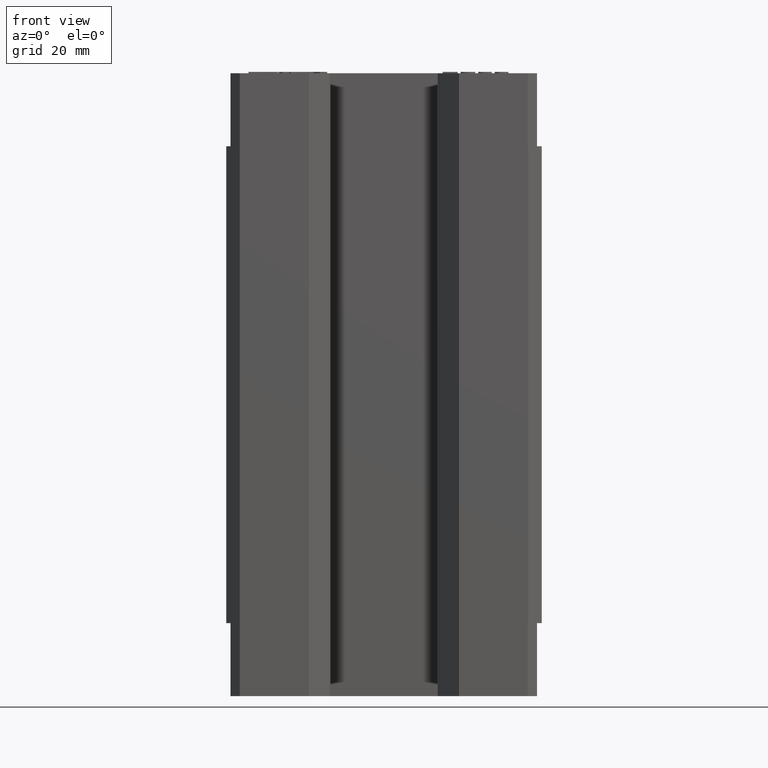
[diagram: clean part render]
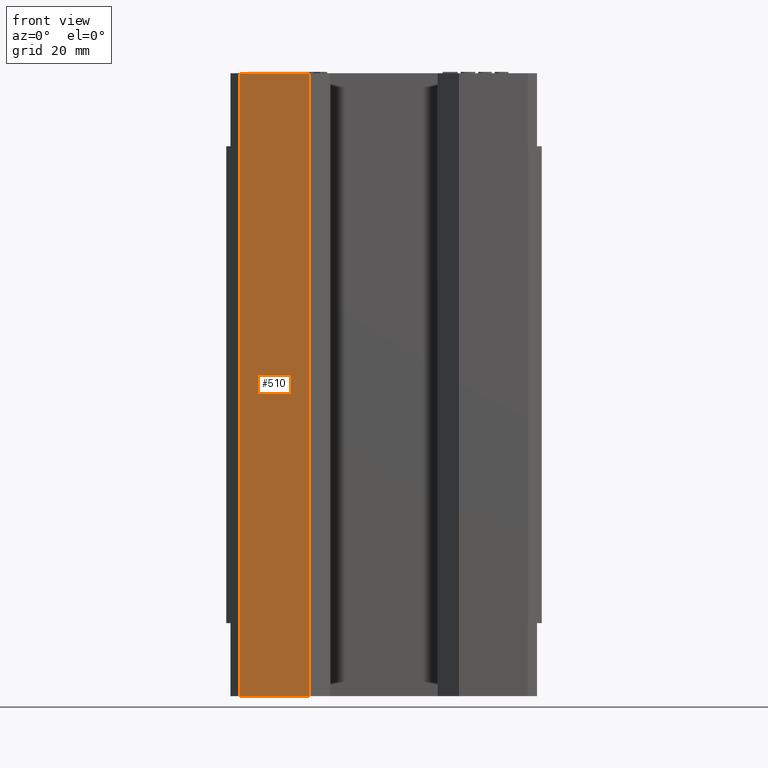
[diagram: same view with one face highlighted and labeled with its STEP entity id]
A machine part, front view. The second image highlights one B-rep face of the part: STEP entity #510.
In plain terms, the highlighted planar face has unit normal (0, -1, 0).
Its self-contained STEP definition (entity closure, byte-faithful):
#508 = EDGE_LOOP ( 'NONE', ( #513, #699, #696, #701 ) ) ;
#510 = ADVANCED_FACE ( 'NONE', ( #12615 ), #12614, .T. ) ;
#512 = EDGE_CURVE ( 'NONE', #690, #704, #12609, .T. ) ;
#513 = ORIENTED_EDGE ( 'NONE', *, *, #512, .T. ) ;
#689 = VERTEX_POINT ( 'NONE', #12957 ) ;
#690 = VERTEX_POINT ( 'NONE', #12956 ) ;
#693 = EDGE_CURVE ( 'NONE', #689, #690, #12951, .T. ) ;
#694 = EDGE_CURVE ( 'NONE', #689, #695, #12947, .T. ) ;
#695 = VERTEX_POINT ( 'NONE', #12943 ) ;
#696 = ORIENTED_EDGE ( 'NONE', *, *, #694, .F. ) ;
#697 = EDGE_CURVE ( 'NONE', #695, #704, #12942, .T. ) ;
#699 = ORIENTED_EDGE ( 'NONE', *, *, #697, .F. ) ;
#701 = ORIENTED_EDGE ( 'NONE', *, *, #693, .T. ) ;
#704 = VERTEX_POINT ( 'NONE', #12993 ) ;
#12606 = DIRECTION ( 'NONE',  ( 1.000000000000000000, 0.0000000000000000000, 0.0000000000000000000 ) ) ;
#12607 = VECTOR ( 'NONE', #12606, 1000.000000000000000 ) ;
#12608 = CARTESIAN_POINT ( 'NONE',  ( 0.0000000000000000000, -21.50000000000000000, -69.09999999999999400 ) ) ;
#12609 = LINE ( 'NONE', #12608, #12607 ) ;
#12610 = DIRECTION ( 'NONE',  ( 0.0000000000000000000, 0.0000000000000000000, -1.000000000000000000 ) ) ;
#12611 = DIRECTION ( 'NONE',  ( 0.0000000000000000000, -1.000000000000000000, 0.0000000000000000000 ) ) ;
#12612 = CARTESIAN_POINT ( 'NONE',  ( -32.00000000000000000, -21.50000000000000000, -52.90000000000000600 ) ) ;
#12613 = AXIS2_PLACEMENT_3D ( 'NONE', #12612, #12611, #12610 ) ;
#12614 = PLANE ( 'NONE',  #12613 ) ;
#12615 = FACE_OUTER_BOUND ( 'NONE', #508, .T. ) ;
#12939 = DIRECTION ( 'NONE',  ( 0.0000000000000000000, 0.0000000000000000000, -1.000000000000000000 ) ) ;
#12940 = VECTOR ( 'NONE', #12939, 1000.000000000000000 ) ;
#12941 = CARTESIAN_POINT ( 'NONE',  ( -16.64140162820000400, -21.50000000000000000, -52.90000000000000600 ) ) ;
#12942 = LINE ( 'NONE', #12941, #12940 ) ;
#12943 = CARTESIAN_POINT ( 'NONE',  ( -16.64140162820000400, -21.50000000000000000, 69.09999999999999400 ) ) ;
#12944 = DIRECTION ( 'NONE',  ( 1.000000000000000000, 0.0000000000000000000, 0.0000000000000000000 ) ) ;
#12945 = VECTOR ( 'NONE', #12944, 1000.000000000000000 ) ;
#12946 = CARTESIAN_POINT ( 'NONE',  ( 0.0000000000000000000, -21.50000000000000000, 69.09999999999999400 ) ) ;
#12947 = LINE ( 'NONE', #12946, #12945 ) ;
#12948 = DIRECTION ( 'NONE',  ( 0.0000000000000000000, 0.0000000000000000000, -1.000000000000000000 ) ) ;
#12949 = VECTOR ( 'NONE', #12948, 1000.000000000000000 ) ;
#12950 = CARTESIAN_POINT ( 'NONE',  ( -32.00000000000000000, -21.50000000000000000, -52.90000000000000600 ) ) ;
#12951 = LINE ( 'NONE', #12950, #12949 ) ;
#12956 = CARTESIAN_POINT ( 'NONE',  ( -32.00000000000000000, -21.50000000000000000, -69.09999999999999400 ) ) ;
#12957 = CARTESIAN_POINT ( 'NONE',  ( -32.00000000000000000, -21.50000000000000000, 69.09999999999999400 ) ) ;
#12993 = CARTESIAN_POINT ( 'NONE',  ( -16.64140162820000800, -21.50000000000000000, -69.09999999999999400 ) ) ;